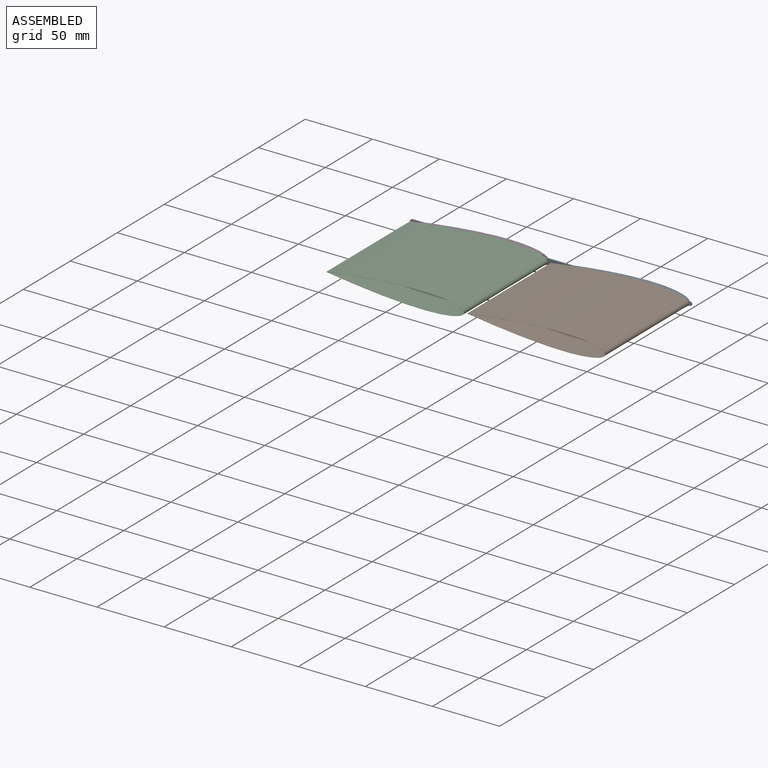
[diagram: assembled view]
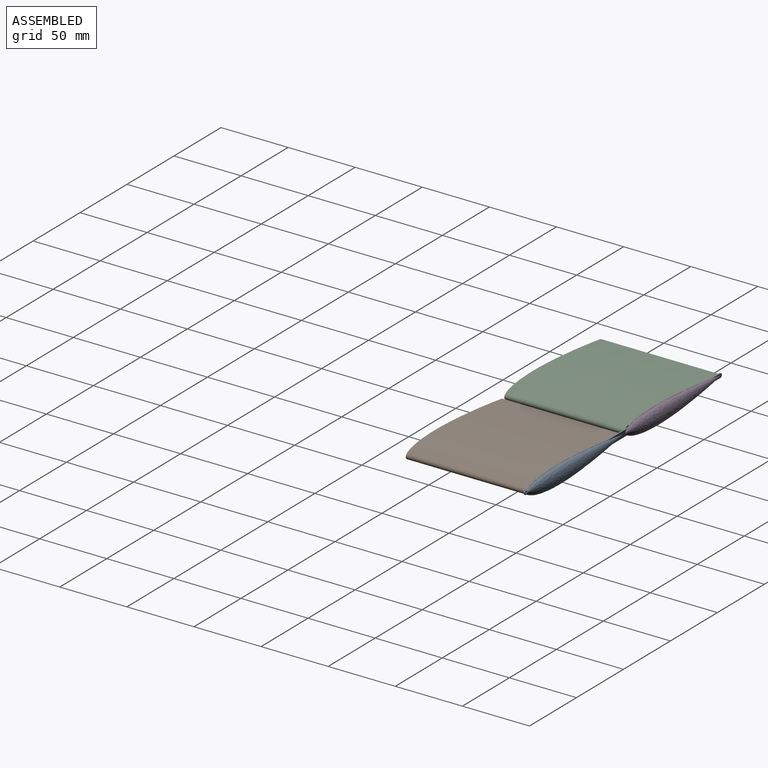
[diagram: assembled view, second angle]
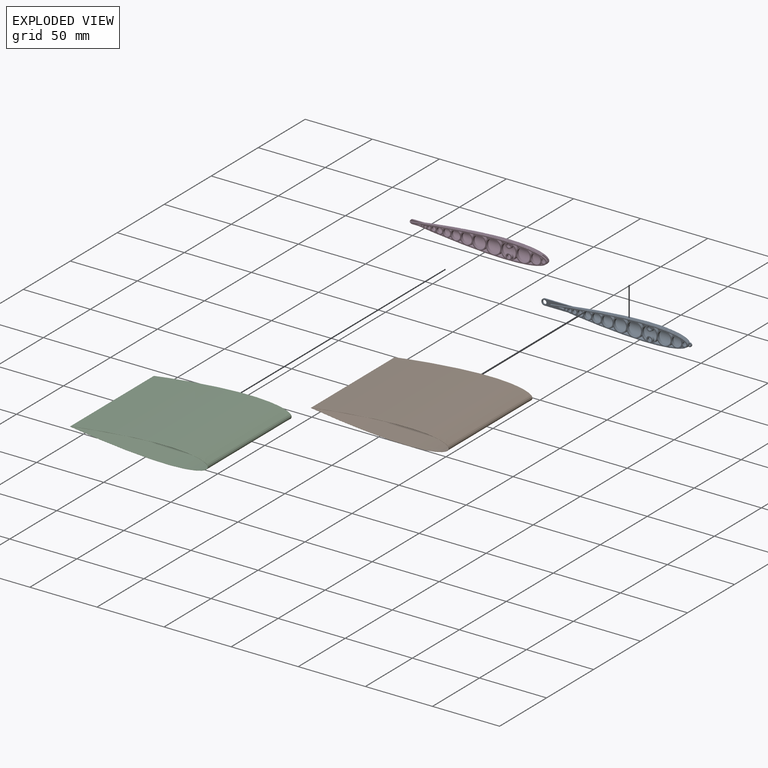
[diagram: exploded view]
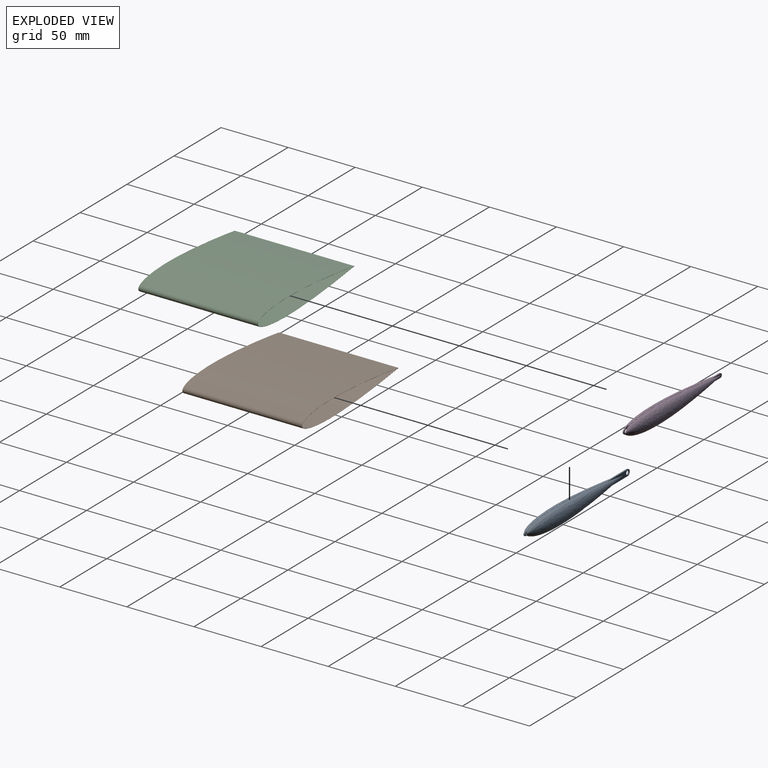
[diagram: exploded view, second angle]
ASSEMBLY  parts=4 mates=3
PART A: 132 faces, bbox 111.8x8.1x12.5 mm
  f0: plane 6.93x5.98mm, normal (0,1,0), area 9.3mm2, adj f52,f83,f84,f85,f106,f107,f108
  f1: plane 9.69x9.59mm, normal (0,1,0), area 15.7mm2, adj f13,f15,f53,f54,f74,f85,f104,f109
  f2: plane 22.91x10.7mm, normal (0,1,0), area 53.8mm2, adj f36,f37,f38,f40,f42,f44,f46,f69
  f3: plane 10.75x10.35mm, normal (0,1,0), area 18.3mm2, adj f16,f17,f19,f56,f59,f69,f98,f101
  f4: plane 9.45x9.29mm, normal (0,1,0), area 15.6mm2, adj f20,f21,f23,f58,f59,f62,f96,f99
  f5: plane 8.02x7.92mm, normal (0,1,0), area 12.7mm2, adj f24,f25,f27,f61,f62,f65,f94,f97
  f6: plane 6.64x6.51mm, normal (0,1,0), area 9.9mm2, adj f28,f29,f31,f64,f65,f68,f92,f95
  f7: plane 5.39x5.19mm, normal (0,1,0), area 7.4mm2, adj f32,f33,f35,f67,f68,f79,f88,f93
  f8: plane 7.73x4.03mm, normal (0,1,0), area 9.4mm2, adj f78,f79,f80,f89
  f9: plane 2.68x2.23mm, normal (0,1,0), area 2.3mm2, adj f80,f81,f90
  f10: plane 2.08x1.57mm, normal (0,1,0), area 1.4mm2, adj f48,f81,f91
  f11: extruded ~102.5x6.15mm, area 109.5mm2, adj f86,f87,f121
  f12: extruded ~4.07x2mm, area 8.2mm2, adj f13,f53,f87,f111
  f13: cylinder r=4.35mm len=2.12mm, axis (0,1,0), area 6mm2, adj f1,f12,f53,f87
  f14: extruded ~4.07x2mm, area 8.2mm2, adj f15,f54,f87,f111
  f15: cylinder r=5.66mm len=2.61mm, axis (0,1,0), area 6.6mm2, adj f1,f14,f54,f87
  f16: cylinder r=5.45mm len=2.72mm, axis (0,1,0), area 7.5mm2, adj f3,f17,f55,f87
  f17: cylinder r=5.98mm len=2.96mm, axis (0,1,0), area 7.8mm2, adj f3,f16,f55,f87
  f18: extruded ~4.88x2mm, area 9.8mm2, adj f19,f56,f87,f114
  f19: cylinder r=5.98mm len=2.96mm, axis (0,1,0), area 7.8mm2, adj f3,f18,f56,f87
  f20: cylinder r=4.77mm len=2.19mm, axis (0,1,0), area 6.1mm2, adj f4,f21,f57,f87
  f21: cylinder r=5.45mm len=2.48mm, axis (0,1,0), area 6.4mm2, adj f4,f20,f57,f87
  f22: extruded ~3.96x2mm, area 7.9mm2, adj f23,f58,f87,f115
  f23: cylinder r=5.45mm len=2.48mm, axis (0,1,0), area 6.4mm2, adj f4,f22,f58,f87
  f24: cylinder r=4.07mm len=2mm, axis (0,1,0), area 4.5mm2, adj f5,f25,f60,f87
  f25: cylinder r=4.77mm len=2mm, axis (0,1,0), area 4.8mm2, adj f5,f24,f60,f87
  f26: extruded ~2.96x2mm, area 5.9mm2, adj f27,f61,f87,f116
  f27: cylinder r=4.77mm len=2mm, axis (0,1,0), area 4.8mm2, adj f5,f26,f61,f87
  f28: cylinder r=3.41mm len=2mm, axis (0,1,0), area 3.1mm2, adj f6,f29,f63,f87
  f29: cylinder r=4.07mm len=2mm, axis (0,1,0), area 3.4mm2, adj f6,f28,f63,f87
  f30: extruded ~2.04x2mm, area 4.1mm2, adj f31,f64,f87,f117
  f31: cylinder r=4.07mm len=2mm, axis (0,1,0), area 3.4mm2, adj f6,f30,f64,f87
  f32: cylinder r=2.83mm len=2mm, axis (0,1,0), area 1.9mm2, adj f7,f33,f66,f87
  f33: cylinder r=3.41mm len=2mm, axis (0,1,0), area 2.1mm2, adj f7,f32,f66,f87
  f34: extruded ~2x1.25mm, area 2.5mm2, adj f35,f67,f87,f118
  f35: cylinder r=3.41mm len=2mm, axis (0,1,0), area 2.1mm2, adj f7,f34,f67,f87
  f36: cylinder r=5.34mm len=9.93mm, axis (0,1,0), area 25.5mm2, adj f2,f37,f70,f87
  f37: cylinder r=2.3mm len=4.6mm, axis (0,1,0), area 19.1mm2, adj f2,f36,f38,f87
  f38: cylinder r=5.34mm len=9.85mm, axis (0,1,0), area 25.1mm2, adj f2,f37,f70,f87
  f39: extruded ~5.47x2mm, area 10.9mm2, adj f40,f71,f87,f113
  f40: cylinder r=6.14mm len=3.18mm, axis (0,1,0), area 8.6mm2, adj f2,f39,f71,f87
  f41: extruded ~5.33x2mm, area 10.7mm2, adj f42,f73,f87,f112
  f42: cylinder r=5.66mm len=2.92mm, axis (0,1,0), area 8.1mm2, adj f2,f41,f73,f87
  f43: extruded ~5.33x2mm, area 10.7mm2, adj f44,f75,f87,f112
  f44: cylinder r=6.14mm len=3.15mm, axis (0,1,0), area 8.4mm2, adj f2,f43,f75,f87
  f45: extruded ~5.47x2mm, area 10.9mm2, adj f46,f77,f87,f113
  f46: cylinder r=5.98mm len=3.1mm, axis (0,1,0), area 8.5mm2, adj f2,f45,f77,f87
  f47: extruded ~2x1.21mm, area 2.4mm2, adj f48,f82,f87,f119
  f48: cylinder r=0.52mm len=2mm, axis (0,1,0), area 3.5mm2, adj f10,f47,f49,f87
  f49: extruded ~2x1.21mm, area 2.4mm2, adj f48,f50,f87,f119
  f50: extruded ~2.71x2mm, area 5.5mm2, adj f49,f82,f87,f120
  f51: extruded ~2x1.69mm, area 3.6mm2, adj f52,f84,f87,f106
  f52: cylinder r=4.35mm len=2mm, axis (0,1,0), area 3mm2, adj f0,f51,f84,f87
  f53: cylinder r=5.66mm len=2.61mm, axis (0,1,0), area 6.6mm2, adj f1,f12,f13,f87
  f54: cylinder r=4.35mm len=2.12mm, axis (0,1,0), area 6mm2, adj f1,f14,f15,f87
  f55: extruded ~4.88x2mm, area 9.8mm2, adj f16,f17,f87,f114
  f56: cylinder r=5.45mm len=2.72mm, axis (0,1,0), area 7.5mm2, adj f3,f18,f19,f87
  f57: extruded ~3.96x2mm, area 7.9mm2, adj f20,f21,f87,f115
  f58: cylinder r=4.77mm len=2.19mm, axis (0,1,0), area 6.1mm2, adj f4,f22,f23,f87
  f59: cylinder r=4.65mm len=9.3mm, axis (0,1,0), area 58.5mm2, adj f3,f4,f87
  f60: extruded ~2.96x2mm, area 5.9mm2, adj f24,f25,f87,f116
  f61: cylinder r=4.07mm len=2mm, axis (0,1,0), area 4.5mm2, adj f5,f26,f27,f87
  f62: cylinder r=3.97mm len=7.94mm, axis (0,1,0), area 49.9mm2, adj f4,f5,f87
  f63: extruded ~2.04x2mm, area 4.1mm2, adj f28,f29,f87,f117
  f64: cylinder r=3.41mm len=2mm, axis (0,1,0), area 3.1mm2, adj f6,f30,f31,f87
  f65: cylinder r=3.27mm len=6.54mm, axis (0,1,0), area 41.1mm2, adj f5,f6,f87
  f66: extruded ~2x1.25mm, area 2.5mm2, adj f32,f33,f87,f118
  f67: cylinder r=2.83mm len=2mm, axis (0,1,0), area 1.9mm2, adj f7,f34,f35,f87
  f68: cylinder r=2.61mm len=5.22mm, axis (0,1,0), area 32.8mm2, adj f6,f7,f87
  f69: cylinder r=5.18mm len=10.36mm, axis (0,1,0), area 65.1mm2, adj f2,f3,f87
  f70: cylinder r=2.3mm len=4.6mm, axis (0,1,0), area 19.1mm2, adj f2,f36,f38,f87
  f71: cylinder r=5.98mm len=3.1mm, axis (0,1,0), area 8.5mm2, adj f2,f39,f40,f87
  f72: cylinder r=1.5mm len=3mm, axis (0,1,0), area 18.8mm2, adj f2,f87
  f73: cylinder r=6.14mm len=3.15mm, axis (0,1,0), area 8.4mm2, adj f2,f41,f42,f87
  f74: cylinder r=4.86mm len=9.72mm, axis (0,1,0), area 61.1mm2, adj f1,f2,f87
  f75: cylinder r=5.66mm len=2.92mm, axis (0,1,0), area 8.1mm2, adj f2,f43,f44,f87
  f76: cylinder r=1.5mm len=3mm, axis (0,1,0), area 18.8mm2, adj f2,f87
  f77: cylinder r=6.14mm len=3.18mm, axis (0,1,0), area 8.6mm2, adj f2,f45,f46,f87
  f78: cylinder r=1.5mm len=3mm, axis (0,1,0), area 18.8mm2, adj f8,f87
  f79: cylinder r=2.03mm len=4.06mm, axis (0,1,0), area 25.5mm2, adj f7,f8,f87
  f80: cylinder r=1.12mm len=2.25mm, axis (0,1,0), area 14.1mm2, adj f8,f9,f87
  f81: cylinder r=0.79mm len=2mm, axis (0,1,0), area 9.9mm2, adj f9,f10,f87
  f82: extruded ~2.71x2mm, area 5.5mm2, adj f47,f50,f87,f120
  f83: cylinder r=1.5mm len=3mm, axis (0,1,0), area 18.8mm2, adj f0,f87,f110
  f84: cylinder r=2.3mm len=2mm, axis (0,1,0), area 2.4mm2, adj f0,f51,f52,f87
  f85: cylinder r=3.55mm len=7.1mm, axis (0,1,0), area 44.6mm2, adj f0,f1,f87
  f86: extruded ~102.5x6.15mm, area 109.5mm2, adj f11,f87,f121
  f87: plane 102.5x12.31mm, normal (0,-1,0), area 317.4mm2, adj f11,f12,f13,f14,f15,f16,f17,f18
  f88: revolved ~4.46x2.23mm, area 13.2mm2, adj f7,f89,f118
  f89: revolved ~7.73x4.03mm, area 38.5mm2, adj f8,f88,f90
  f90: revolved ~2.68x2.23mm, area 8mm2, adj f9,f89,f91
  f91: revolved ~2.08x1.57mm, area 4.3mm2, adj f10,f90,f119
  f92: revolved ~5.64x2.82mm, area 18.7mm2, adj f6,f93,f117
  f93: revolved ~5.19x2.6mm, area 17.1mm2, adj f7,f92,f118
  f94: revolved ~6.95x3.48mm, area 25.7mm2, adj f5,f95,f116
  f95: revolved ~6.51x3.25mm, area 23.9mm2, adj f6,f94,f117
  f96: revolved ~8.33x4.17mm, area 33.9mm2, adj f4,f97,f115
  f97: revolved ~7.92x3.96mm, area 32.1mm2, adj f5,f96,f116
  f98: revolved ~9.63x4.81mm, area 42.5mm2, adj f3,f99,f114
  f99: revolved ~9.29x4.64mm, area 40.8mm2, adj f4,f98,f115
  f100: revolved ~10.54x5.27mm, area 49.5mm2, adj f2,f101,f113
  f101: revolved ~10.35x5.18mm, area 48.4mm2, adj f3,f100,f114
  f102: revolved ~10.68x5.34mm, area 51.3mm2, adj f2,f103,f112
  f103: revolved ~10.7x5.35mm, area 51.6mm2, adj f2,f102,f113
  f104: revolved ~9.69x4.84mm, area 43.9mm2, adj f1,f105,f111
  f105: revolved ~10.12x5.06mm, area 46.1mm2, adj f2,f104,f112
  f106: revolved ~5.55x2.77mm, area 14mm2, adj f0,f51,f107,f108
  f107: revolved ~4.3x2.15mm, area 10.6mm2, adj f0,f106,f110
  f108: revolved ~6.93x3.46mm, area 26.2mm2, adj f0,f106,f109
  f109: revolved ~7.94x3.97mm, area 30.6mm2, adj f1,f108,f111
  f110: sphere r=1.5mm, area 2.7mm2, adj f83,f107
  f111: revolved ~9.1x4.55mm, area 55.2mm2, adj f12,f14,f104,f109
  f112: revolved ~10.57x5.33mm, area 87mm2, adj f41,f43,f102,f105
  f113: revolved ~10.7x5.47mm, area 91.5mm2, adj f39,f45,f100,f103
  f114: revolved ~10.12x5.06mm, area 75.9mm2, adj f18,f55,f98,f101
  f115: revolved ~8.91x4.46mm, area 53.7mm2, adj f22,f57,f96,f99
  f116: revolved ~7.47x3.74mm, area 33.7mm2, adj f26,f60,f94,f97
  f117: revolved ~6.04x3.02mm, area 18.8mm2, adj f30,f63,f92,f95
  f118: revolved ~4.73x2.37mm, area 9mm2, adj f34,f66,f88,f93
  f119: revolved ~1.21x1.04mm, area 1.7mm2, adj f47,f49,f91,f120
  f120: revolved ~2.71x0.72mm, area 1.6mm2, adj f50,f82,f119
  f121: plane 111.8x12.5mm, normal (0,-1,0), area 84.6mm2, adj f11,f86,f123,f124,f125,f126,f127,f128
  f122: plane 111.8x12.5mm, normal (0,1,0), area 84.6mm2, adj f123,f124,f125,f126,f127,f128,f129,f130
  f123: cylinder r=2.3mm len=4.6mm, axis (0,1,0), area 6.9mm2, adj f121,f122,f124,f129
  f124: plane 21.74x0.95mm, normal (0,0,-1), area 20.6mm2, adj f121,f122,f123,f125
  f125: extruded ~85.5x5.15mm, area 82.2mm2, adj f121,f122,f124,f126
  f126: cylinder r=1.4mm len=2.8mm, axis (0,1,0), area 6mm2, adj f121,f122,f125,f127
  f127: extruded ~85.5x5.15mm, area 82.2mm2, adj f121,f122,f126,f129
  f128: cylinder r=0.6mm len=1.2mm, axis (0,1,0), area 3.6mm2, adj f121,f122
  f129: plane 21.74x0.95mm, normal (0,0,1), area 20.6mm2, adj f121,f122,f123,f127
  f130: cylinder r=1.5mm len=3mm, axis (0,1,0), area 9mm2, adj f121,f122
  f131: revolved ~102.5x12.3mm, area 1359.8mm2, adj f122
PART B: 8 faces, bbox 102.7x89.1x12.5 mm
  f0: extruded ~102.61x89.1mm, area 9301.2mm2, adj f1,f5,f6,f7
  f1: cylinder r=0.1mm len=89.1mm, axis (0,1,0), area 1.6mm2, adj f0,f2,f6,f7
  f2: extruded ~102.61x89.1mm, area 9301.2mm2, adj f1,f5,f6,f7
  f3: extruded ~102.5x89.1mm, area 9287.7mm2, adj f4,f6,f7
  f4: extruded ~102.5x89.1mm, area 9287.7mm2, adj f3,f6,f7
  f5: cylinder r=0.1mm len=89.1mm, axis (0,1,0), area 25.4mm2, adj f0,f2,f6,f7
  f6: plane 102.7x12.5mm, normal (0,-1,0), area 21.1mm2, adj f0,f1,f2,f3,f4,f5
  f7: plane 102.7x12.5mm, normal (0,1,0), area 21.1mm2, adj f0,f1,f2,f3,f4,f5
PART C: same geometry as B
PART D: 146 faces, bbox 102.7x8.2x12.5 mm
  f0: cylinder r=3.55mm len=7.1mm, axis (0,1,0), area 34.6mm2, adj f3,f97,f140,f142,f143
  f1: plane 98.35x12.5mm, normal (0,-1,0), area 33.5mm2, adj f15,f16,f17,f18,f132,f133,f134,f135
  f2: plane 98.36x12.51mm, normal (0,1,0), area 33.5mm2, adj f132,f133,f134,f135,f136,f138,f139,f144
  f3: plane 9.69x9.59mm, normal (0,1,0), area 15.7mm2, adj f0,f25,f26,f28,f66,f87,f115,f118
  f4: plane 22.91x10.7mm, normal (0,1,0), area 53.8mm2, adj f49,f50,f51,f52,f53,f55,f57,f59
  f5: plane 10.75x10.35mm, normal (0,1,0), area 18.3mm2, adj f29,f30,f32,f68,f71,f83,f109,f112
  f6: plane 9.45x9.29mm, normal (0,1,0), area 15.6mm2, adj f33,f34,f36,f70,f71,f74,f107,f110
  f7: plane 8.02x7.92mm, normal (0,1,0), area 12.7mm2, adj f37,f38,f40,f73,f74,f77,f105,f108
  f8: plane 6.64x6.51mm, normal (0,1,0), area 9.9mm2, adj f41,f42,f44,f76,f77,f80,f103,f106
  f9: plane 5.39x5.19mm, normal (0,1,0), area 7.4mm2, adj f45,f46,f48,f79,f80,f91,f98,f104
  f10: plane 7.73x4.03mm, normal (0,1,0), area 9.4mm2, adj f90,f91,f92,f99
  f11: plane 2.68x2.23mm, normal (0,1,0), area 2.3mm2, adj f92,f93,f100
  f12: plane 2.08x1.57mm, normal (0,1,0), area 1.4mm2, adj f93,f94,f101
  f13: plane 1.26x1.04mm, normal (0,1,0), area 0.7mm2, adj f61,f94,f102
  f14: extruded ~4.39x3.41mm, area 5.6mm2, adj f15,f96,f97,f140
  f15: extruded ~95.4x5.76mm, area 91.1mm2, adj f1,f14,f16,f97
  f16: extruded ~2.71x0.95mm, area 2.6mm2, adj f1,f15,f17,f97
  f17: extruded ~2.71x0.95mm, area 2.6mm2, adj f1,f16,f18,f97
  f18: extruded ~95.4x5.76mm, area 91.1mm2, adj f1,f17,f96,f97
  f19: cylinder r=2.3mm len=0.95mm, axis (0,1,0), area 1.1mm2, adj f20,f62,f97,f140
  f20: cylinder r=4.35mm len=1.29mm, axis (0,1,0), area 1.4mm2, adj f19,f21,f97,f140
  f21: extruded ~2x0.12mm, area 0.3mm2, adj f20,f62,f97,f122,f142,f145
  f22: extruded ~2x0.12mm, area 0.3mm2, adj f23,f64,f97,f122,f143,f144
  f23: cylinder r=4.35mm len=1.29mm, axis (0,1,0), area 1.4mm2, adj f22,f24,f97,f140
  f24: cylinder r=2.3mm len=0.95mm, axis (0,1,0), area 1.1mm2, adj f23,f64,f97,f140
  f25: cylinder r=5.66mm len=2.61mm, axis (0,1,0), area 6.6mm2, adj f3,f26,f65,f97
  f26: cylinder r=4.35mm len=2.12mm, axis (0,1,0), area 6mm2, adj f3,f25,f65,f97
  f27: extruded ~4.07x2mm, area 8.2mm2, adj f28,f66,f97,f123
  f28: cylinder r=4.35mm len=2.12mm, axis (0,1,0), area 6mm2, adj f3,f27,f66,f97
  f29: cylinder r=5.45mm len=2.72mm, axis (0,1,0), area 7.5mm2, adj f5,f30,f67,f97
  f30: cylinder r=5.98mm len=2.96mm, axis (0,1,0), area 7.8mm2, adj f5,f29,f67,f97
  f31: extruded ~4.88x2mm, area 9.8mm2, adj f32,f68,f97,f126
  f32: cylinder r=5.98mm len=2.96mm, axis (0,1,0), area 7.8mm2, adj f5,f31,f68,f97
  f33: cylinder r=4.77mm len=2.19mm, axis (0,1,0), area 6.1mm2, adj f6,f34,f69,f97
  f34: cylinder r=5.45mm len=2.48mm, axis (0,1,0), area 6.4mm2, adj f6,f33,f69,f97
  f35: extruded ~3.96x2mm, area 7.9mm2, adj f36,f70,f97,f127
  f36: cylinder r=5.45mm len=2.48mm, axis (0,1,0), area 6.4mm2, adj f6,f35,f70,f97
  f37: cylinder r=4.07mm len=2mm, axis (0,1,0), area 4.5mm2, adj f7,f38,f72,f97
  f38: cylinder r=4.77mm len=2mm, axis (0,1,0), area 4.8mm2, adj f7,f37,f72,f97
  f39: extruded ~2.96x2mm, area 5.9mm2, adj f40,f73,f97,f128
  f40: cylinder r=4.77mm len=2mm, axis (0,1,0), area 4.8mm2, adj f7,f39,f73,f97
  f41: cylinder r=3.41mm len=2mm, axis (0,1,0), area 3.1mm2, adj f8,f42,f75,f97
  f42: cylinder r=4.07mm len=2mm, axis (0,1,0), area 3.4mm2, adj f8,f41,f75,f97
  f43: extruded ~2.04x2mm, area 4.1mm2, adj f44,f76,f97,f129
  f44: cylinder r=4.07mm len=2mm, axis (0,1,0), area 3.4mm2, adj f8,f43,f76,f97
  f45: cylinder r=2.83mm len=2mm, axis (0,1,0), area 1.9mm2, adj f9,f46,f78,f97
  f46: cylinder r=3.41mm len=2mm, axis (0,1,0), area 2.1mm2, adj f9,f45,f78,f97
  f47: extruded ~2x1.25mm, area 2.5mm2, adj f48,f79,f97,f130
  f48: cylinder r=3.41mm len=2mm, axis (0,1,0), area 2.1mm2, adj f9,f47,f79,f97
  f49: cylinder r=5.98mm len=3.1mm, axis (0,1,0), area 8.5mm2, adj f4,f50,f81,f97
  f50: cylinder r=6.14mm len=3.18mm, axis (0,1,0), area 8.6mm2, adj f4,f49,f81,f97
  f51: cylinder r=5.34mm len=9.93mm, axis (0,1,0), area 25.5mm2, adj f4,f52,f82,f97
  f52: cylinder r=2.3mm len=4.6mm, axis (0,1,0), area 19.1mm2, adj f4,f51,f53,f97
  f53: cylinder r=5.34mm len=9.85mm, axis (0,1,0), area 25.1mm2, adj f4,f52,f82,f97
  f54: extruded ~5.47x2mm, area 10.9mm2, adj f55,f84,f97,f125
  f55: cylinder r=6.14mm len=3.18mm, axis (0,1,0), area 8.6mm2, adj f4,f54,f84,f97
  f56: extruded ~5.33x2mm, area 10.7mm2, adj f57,f86,f97,f124
  f57: cylinder r=5.66mm len=2.92mm, axis (0,1,0), area 8.1mm2, adj f4,f56,f86,f97
  f58: extruded ~5.33x2mm, area 10.7mm2, adj f59,f88,f97,f124
  f59: cylinder r=6.14mm len=3.15mm, axis (0,1,0), area 8.4mm2, adj f4,f58,f88,f97
  f60: extruded ~2.71x2mm, area 5.5mm2, adj f61,f95,f97,f131
  f61: cylinder r=1.32mm len=2mm, axis (0,1,0), area 1.5mm2, adj f13,f60,f95,f97
  f62: extruded ~1.57x0.95mm, area 1.6mm2, adj f19,f21,f97,f140
  f63: cylinder r=1.5mm len=3mm, axis (0,1,0), area 9mm2, adj f97,f140
  f64: extruded ~1.57x0.95mm, area 1.6mm2, adj f22,f24,f97,f140
  f65: extruded ~4.07x2mm, area 8.2mm2, adj f25,f26,f97,f123
  f66: cylinder r=5.66mm len=2.61mm, axis (0,1,0), area 6.6mm2, adj f3,f27,f28,f97
  f67: extruded ~4.88x2mm, area 9.8mm2, adj f29,f30,f97,f126
  f68: cylinder r=5.45mm len=2.72mm, axis (0,1,0), area 7.5mm2, adj f5,f31,f32,f97
  f69: extruded ~3.96x2mm, area 7.9mm2, adj f33,f34,f97,f127
  f70: cylinder r=4.77mm len=2.19mm, axis (0,1,0), area 6.1mm2, adj f6,f35,f36,f97
  f71: cylinder r=4.65mm len=9.3mm, axis (0,1,0), area 58.5mm2, adj f5,f6,f97
  f72: extruded ~2.96x2mm, area 5.9mm2, adj f37,f38,f97,f128
  f73: cylinder r=4.07mm len=2mm, axis (0,1,0), area 4.5mm2, adj f7,f39,f40,f97
  f74: cylinder r=3.97mm len=7.94mm, axis (0,1,0), area 49.9mm2, adj f6,f7,f97
  f75: extruded ~2.04x2mm, area 4.1mm2, adj f41,f42,f97,f129
  f76: cylinder r=3.41mm len=2mm, axis (0,1,0), area 3.1mm2, adj f8,f43,f44,f97
  f77: cylinder r=3.27mm len=6.54mm, axis (0,1,0), area 41.1mm2, adj f7,f8,f97
  f78: extruded ~2x1.25mm, area 2.5mm2, adj f45,f46,f97,f130
  f79: cylinder r=2.83mm len=2mm, axis (0,1,0), area 1.9mm2, adj f9,f47,f48,f97
  f80: cylinder r=2.61mm len=5.22mm, axis (0,1,0), area 32.8mm2, adj f8,f9,f97
  f81: extruded ~5.47x2mm, area 10.9mm2, adj f49,f50,f97,f125
  f82: cylinder r=2.3mm len=4.6mm, axis (0,1,0), area 19.1mm2, adj f4,f51,f53,f97
  f83: cylinder r=5.18mm len=10.36mm, axis (0,1,0), area 65.1mm2, adj f4,f5,f97
  f84: cylinder r=5.98mm len=3.1mm, axis (0,1,0), area 8.5mm2, adj f4,f54,f55,f97
  f85: cylinder r=1.5mm len=3mm, axis (0,1,0), area 18.8mm2, adj f4,f97
  f86: cylinder r=6.14mm len=3.15mm, axis (0,1,0), area 8.4mm2, adj f4,f56,f57,f97
  f87: cylinder r=4.86mm len=9.72mm, axis (0,1,0), area 61.1mm2, adj f3,f4,f97
  f88: cylinder r=5.66mm len=2.92mm, axis (0,1,0), area 8.1mm2, adj f4,f58,f59,f97
  f89: cylinder r=1.5mm len=3mm, axis (0,1,0), area 18.8mm2, adj f4,f97
  f90: cylinder r=1.5mm len=3mm, axis (0,1,0), area 18.8mm2, adj f10,f97
  f91: cylinder r=2.03mm len=4.06mm, axis (0,1,0), area 25.5mm2, adj f9,f10,f97
  f92: cylinder r=1.12mm len=2.25mm, axis (0,1,0), area 14.1mm2, adj f10,f11,f97
  f93: cylinder r=0.79mm len=2mm, axis (0,1,0), area 9.9mm2, adj f11,f12,f97
  f94: cylinder r=0.52mm len=2mm, axis (0,1,0), area 6.6mm2, adj f12,f13,f97
  f95: extruded ~2.71x2mm, area 5.5mm2, adj f60,f61,f97,f131
  f96: extruded ~4.39x3.41mm, area 5.6mm2, adj f14,f18,f97,f140
  f97: plane 102.5x12.31mm, normal (0,-1,0), area 317.5mm2, adj f0,f14,f15,f16,f17,f18,f19,f20
  f98: revolved ~4.46x2.23mm, area 13.2mm2, adj f9,f99,f130
  f99: revolved ~7.73x4.03mm, area 38.5mm2, adj f10,f98,f100
  f100: revolved ~2.68x2.23mm, area 8mm2, adj f11,f99,f101
  f101: revolved ~2.08x1.57mm, area 4.3mm2, adj f12,f100,f102
  f102: revolved ~1.21x1.04mm, area 1.7mm2, adj f13,f101,f131
  f103: revolved ~5.64x2.82mm, area 18.7mm2, adj f8,f104,f129
  f104: revolved ~5.19x2.6mm, area 17.1mm2, adj f9,f103,f130
  f105: revolved ~6.95x3.48mm, area 25.7mm2, adj f7,f106,f128
  f106: revolved ~6.51x3.25mm, area 23.9mm2, adj f8,f105,f129
  f107: revolved ~8.33x4.17mm, area 33.9mm2, adj f6,f108,f127
  f108: revolved ~7.92x3.96mm, area 32.1mm2, adj f7,f107,f128
  f109: revolved ~9.63x4.81mm, area 42.5mm2, adj f5,f110,f126
  f110: revolved ~9.29x4.64mm, area 40.8mm2, adj f6,f109,f127
  f111: revolved ~10.54x5.27mm, area 49.5mm2, adj f4,f112,f125
  f112: revolved ~10.35x5.18mm, area 48.4mm2, adj f5,f111,f126
  f113: revolved ~10.68x5.34mm, area 51.3mm2, adj f4,f114,f124
  f114: revolved ~10.7x5.35mm, area 51.6mm2, adj f4,f113,f125
  f115: revolved ~9.69x4.84mm, area 43.9mm2, adj f3,f116,f123
  f116: revolved ~10.12x5.06mm, area 46.1mm2, adj f4,f115,f124
  f117: revolved ~6.93x3.46mm, area 26.2mm2, adj f118,f122,f142,f143
  f118: revolved ~7.94x3.97mm, area 30.6mm2, adj f3,f117,f123
  f119: revolved ~4.3x2.15mm, area 10.6mm2, adj f120,f121,f141
  f120: revolved ~5.47x2.74mm, area 12.9mm2, adj f119,f122,f141
  f121: sphere r=1.5mm, area 2.7mm2, adj f119,f141
  f122: revolved ~5.55x2.77mm, area 1.1mm2, adj f21,f22,f117,f120
  f123: revolved ~9.1x4.55mm, area 55.2mm2, adj f27,f65,f115,f118
  f124: revolved ~10.57x5.33mm, area 87mm2, adj f56,f58,f113,f116
  f125: revolved ~10.7x5.47mm, area 91.5mm2, adj f54,f81,f111,f114
  f126: revolved ~10.12x5.06mm, area 75.9mm2, adj f31,f67,f109,f112
  f127: revolved ~8.91x4.46mm, area 53.7mm2, adj f35,f69,f107,f110
  f128: revolved ~7.47x3.74mm, area 33.7mm2, adj f39,f72,f105,f108
  f129: revolved ~6.04x3.02mm, area 18.8mm2, adj f43,f75,f103,f106
  f130: revolved ~4.73x2.37mm, area 9mm2, adj f47,f78,f98,f104
  f131: revolved ~2.71x0.72mm, area 1.6mm2, adj f60,f95,f102
  f132: extruded ~87.62x4.75mm, area 92.4mm2, adj f1,f2,f133,f145
  f133: plane 8.99x1.05mm, normal (0,0,1), area 9.4mm2, adj f1,f2,f132,f134
  f134: cylinder r=1.5mm len=3mm, axis (0,1,0), area 4.9mm2, adj f1,f2,f133,f135
  f135: plane 8.99x1.05mm, normal (0,0,-1), area 9.4mm2, adj f1,f2,f134,f136
  f136: extruded ~87.62x4.75mm, area 92.4mm2, adj f1,f2,f135,f144
  f137: revolved ~6.81x4.39mm, area 37.8mm2, adj f138,f141
  f138: revolved ~95.4x12.3mm, area 1321.3mm2, adj f2,f137,f139
  f139: revolved ~2.71x0.77mm, area 1.7mm2, adj f2,f138
  f140: plane 7.59x6.93mm, normal (0,1,0), area 17.2mm2, adj f0,f14,f19,f20,f23,f24,f62,f63
  f141: plane 6.82x4.9mm, normal (0,-1,0), area 8.7mm2, adj f119,f120,f121,f137,f144,f145
  f142: extruded ~2.56x1.05mm, area 2.8mm2, adj f0,f21,f117,f140
  f143: extruded ~2.56x1.05mm, area 2.8mm2, adj f0,f22,f117,f140
  f144: cylinder r=0.45mm len=1.05mm, axis (0,1,0), area 1.5mm2, adj f1,f2,f22,f136,f140,f141
  f145: cylinder r=0.45mm len=1.05mm, axis (0,1,0), area 1.5mm2, adj f1,f2,f21,f132,f140,f141
PLACE A t=(-10.65,1.28,-1.28)mm fixed
PLACE B t=(-10.65,0.33,-1.28)mm
PLACE C t=(-115.63,0.28,-1.28)mm
PLACE D t=(-115.63,1.33,-1.28)mm
MATE fastened A.f121 <-> B.f1  axis (0,1,0) through (40.6,0.33,-1.28)mm
MATE revolute A.f130 <-> D.f63  axis (0,-1,0) through (-66.9,0.33,-1.28)mm
MATE fastened C.f1 <-> D.f140  axis (0,1,0) through (-64.38,0.28,-1.28)mm
